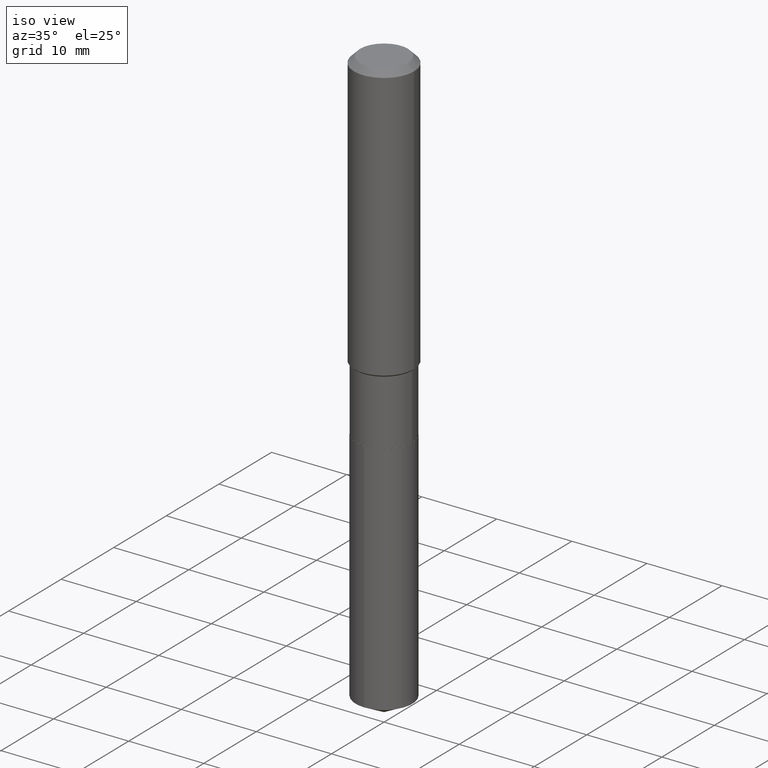
[diagram: clean part render]
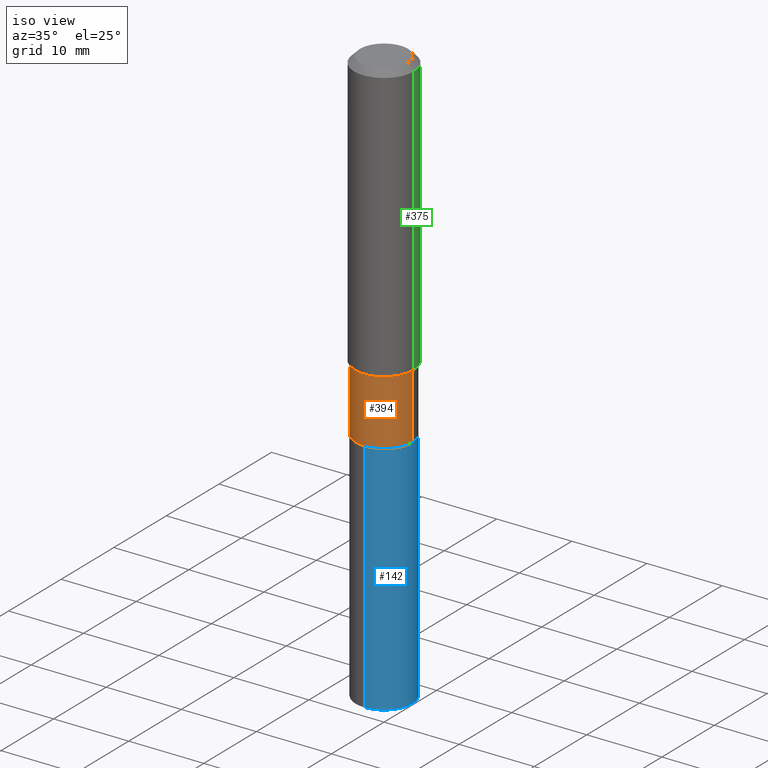
[diagram: same view with three faces highlighted in distinct colors, each labeled with its STEP entity id]
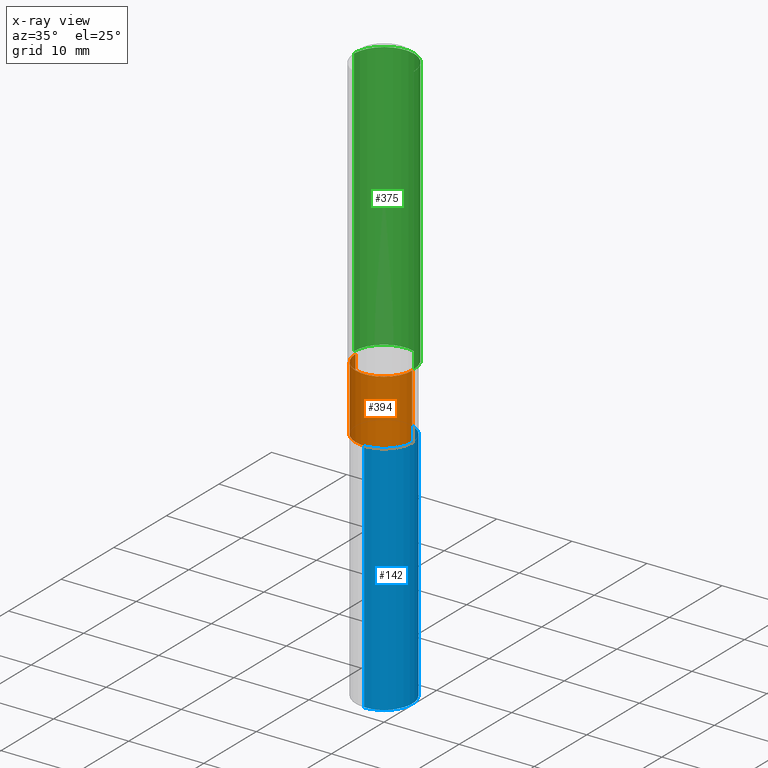
[diagram: x-ray of the same camera — body ghosted, the three highlighted faces saturated]
A machine part, iso view with three faces highlighted in distinct colors.
The next image is the same camera in x-ray (body ghosted, the three faces saturated) — at least one of them is partly hidden behind the body in this view.
Their STEP definitions:

[orange] entity #394 — the highlighted cylindrical surface (edge-blend (fillet) strip) has radius 3.7706 mm, axis along (-0, 0, 1).
#3 = AXIS2_PLACEMENT_3D ( 'NONE', #361, #168, #131 ) ;
#9 = EDGE_CURVE ( 'NONE', #54, #458, #342, .T. ) ;
#11 = DIRECTION ( 'NONE',  ( 1.000000000000000000, -6.982962677686264344E-15, 0.000000000000000000 ) ) ;
#21 = CARTESIAN_POINT ( 'NONE',  ( -0.1484499999999999986, 1.054800691235868716E-15, -7.302159141483407353E-30 ) ) ;
#42 = FACE_OUTER_BOUND ( 'NONE', #69, .T. ) ;
#44 = DIRECTION ( 'NONE',  ( -2.445468806185136597E-29, 3.491481338843145583E-15, 1.000000000000000000 ) ) ;
#50 = VERTEX_POINT ( 'NONE', #129 ) ;
#54 = VERTEX_POINT ( 'NONE', #481 ) ;
#56 = DIRECTION ( 'NONE',  ( -2.445468806185136597E-29, 3.491481338843145583E-15, 1.000000000000000000 ) ) ;
#58 = EDGE_CURVE ( 'NONE', #84, #50, #175, .T. ) ;
#61 = DIRECTION ( 'NONE',  ( -2.445468806185136877E-29, 3.491481338843145188E-15, 1.000000000000000000 ) ) ;
#64 = EDGE_CURVE ( 'NONE', #50, #458, #199, .T. ) ;
#69 = EDGE_LOOP ( 'NONE', ( #437, #93, #417, #299 ) ) ;
#84 = VERTEX_POINT ( 'NONE', #408 ) ;
#93 = ORIENTED_EDGE ( 'NONE', *, *, #58, .T. ) ;
#123 = EDGE_CURVE ( 'NONE', #84, #54, #409, .T. ) ;
#129 = CARTESIAN_POINT ( 'NONE',  ( 0.1484499999999999986, -7.294053664977210990E-15, -1.792199999999999793 ) ) ;
#131 = DIRECTION ( 'NONE',  ( 1.000000000000000000, -6.982962677686268288E-15, 0.000000000000000000 ) ) ;
#165 = CARTESIAN_POINT ( 'NONE',  ( 0.1484499999999999986, -1.036620809502526093E-15, 7.238684423669066410E-30 ) ) ;
#168 = DIRECTION ( 'NONE',  ( -2.445468806185136597E-29, 3.491481338843145583E-15, 1.000000000000000000 ) ) ;
#175 = CIRCLE ( 'NONE', #3, 0.1484499999999999986 ) ;
#176 = AXIS2_PLACEMENT_3D ( 'NONE', #330, #44, #207 ) ;
#191 = AXIS2_PLACEMENT_3D ( 'NONE', #474, #56, #11 ) ;
#199 = LINE ( 'NONE', #165, #260 ) ;
#207 = DIRECTION ( 'NONE',  ( 1.000000000000000000, -6.982962677686265133E-15, 4.876176775795935793E-29 ) ) ;
#260 = VECTOR ( 'NONE', #479, 39.37007874015748143 ) ;
#263 = CARTESIAN_POINT ( 'NONE',  ( 0.1484499999999999431, -6.103807676565582525E-15, -1.451299999999999812 ) ) ;
#299 = ORIENTED_EDGE ( 'NONE', *, *, #9, .F. ) ;
#306 = CYLINDRICAL_SURFACE ( 'NONE', #176, 0.1484499999999999986 ) ;
#330 = CARTESIAN_POINT ( 'NONE',  ( 0.000000000000000000, 0.000000000000000000, 0.000000000000000000 ) ) ;
#342 = CIRCLE ( 'NONE', #191, 0.1484499999999999431 ) ;
#361 = CARTESIAN_POINT ( 'NONE',  ( 4.382769194445001759E-29, -6.257432855474684305E-15, -1.792199999999999793 ) ) ;
#394 = ADVANCED_FACE ( 'NONE', ( #42 ), #306, .T. ) ;
#408 = CARTESIAN_POINT ( 'NONE',  ( -0.1484500000000000264, -4.607509170033001160E-15, -1.792199999999999793 ) ) ;
#409 = LINE ( 'NONE', #21, #414 ) ;
#414 = VECTOR ( 'NONE', #61, 39.37007874015748143 ) ;
#417 = ORIENTED_EDGE ( 'NONE', *, *, #64, .T. ) ;
#437 = ORIENTED_EDGE ( 'NONE', *, *, #123, .F. ) ;
#458 = VERTEX_POINT ( 'NONE', #263 ) ;
#474 = CARTESIAN_POINT ( 'NONE',  ( 3.549108878416488564E-29, -5.067186867063056629E-15, -1.451299999999999812 ) ) ;
#479 = DIRECTION ( 'NONE',  ( -2.445468806185136877E-29, 3.491481338843145188E-15, 1.000000000000000000 ) ) ;
#481 = CARTESIAN_POINT ( 'NONE',  ( -0.1484499999999999431, -4.607509170033001948E-15, -1.451299999999999812 ) ) ;

[blue] entity #142 — the highlighted cylindrical surface (edge-blend (fillet) strip) has radius 3.7706 mm, axis along (-0, 0, 1).
#14 = LINE ( 'NONE', #309, #60 ) ;
#15 = DIRECTION ( 'NONE',  ( -2.445583583356565207E-29, 3.491316971400948587E-15, 1.000000000000000000 ) ) ;
#20 = EDGE_CURVE ( 'NONE', #428, #271, #14, .T. ) ;
#33 = DIRECTION ( 'NONE',  ( -2.445583583356565207E-29, 3.491316971400948587E-15, 1.000000000000000000 ) ) ;
#39 = DIRECTION ( 'NONE',  ( -2.445583583356565487E-29, 3.491316971400948587E-15, 1.000000000000000000 ) ) ;
#60 = VECTOR ( 'NONE', #15, 39.37007874015748143 ) ;
#78 = VERTEX_POINT ( 'NONE', #477 ) ;
#95 = ORIENTED_EDGE ( 'NONE', *, *, #20, .T. ) ;
#98 = DIRECTION ( 'NONE',  ( -6.982962677686265133E-15, -1.000000000000000000, 3.680495781292372402E-15 ) ) ;
#122 = ORIENTED_EDGE ( 'NONE', *, *, #478, .F. ) ;
#124 = AXIS2_PLACEMENT_3D ( 'NONE', #316, #442, #98 ) ;
#135 = VERTEX_POINT ( 'NONE', #196 ) ;
#138 = LINE ( 'NONE', #257, #273 ) ;
#139 = ORIENTED_EDGE ( 'NONE', *, *, #451, .F. ) ;
#142 = ADVANCED_FACE ( 'NONE', ( #446 ), #161, .T. ) ;
#145 = CARTESIAN_POINT ( 'NONE',  ( 7.412523731404263380E-29, -1.058271288573057889E-14, -3.031067734869853592 ) ) ;
#161 = CYLINDRICAL_SURFACE ( 'NONE', #124, 0.1484499999999999986 ) ;
#196 = CARTESIAN_POINT ( 'NONE',  ( -1.036620809502482311E-15, -0.1484500000000062436, -1.792699999999999072 ) ) ;
#253 = CIRCLE ( 'NONE', #322, 0.1484499999999999986 ) ;
#257 = CARTESIAN_POINT ( 'NONE',  ( -1.036620809502482311E-15, -0.1484500000000062436, -1.792699999999999072 ) ) ;
#271 = VERTEX_POINT ( 'NONE', #443 ) ;
#273 = VECTOR ( 'NONE', #33, 39.37007874015748143 ) ;
#289 = ORIENTED_EDGE ( 'NONE', *, *, #349, .T. ) ;
#298 = DIRECTION ( 'NONE',  ( -6.982962677686265133E-15, -1.000000000000000000, 3.680495781292372402E-15 ) ) ;
#309 = CARTESIAN_POINT ( 'NONE',  ( 1.054800691235912301E-15, 0.1484499999999937259, -1.792700000000000182 ) ) ;
#316 = CARTESIAN_POINT ( 'NONE',  ( 4.383991928848093439E-29, -6.259178596144105809E-15, -1.792699999999999738 ) ) ;
#322 = AXIS2_PLACEMENT_3D ( 'NONE', #145, #423, #372 ) ;
#332 = CIRCLE ( 'NONE', #473, 0.1484499999999999986 ) ;
#349 = EDGE_CURVE ( 'NONE', #78, #428, #253, .T. ) ;
#372 = DIRECTION ( 'NONE',  ( -6.982962677686265133E-15, -1.000000000000000000, 3.680495781292372402E-15 ) ) ;
#418 = CARTESIAN_POINT ( 'NONE',  ( 1.054800691235942475E-15, 0.1484499999999893960, -3.031067734869854480 ) ) ;
#420 = CARTESIAN_POINT ( 'NONE',  ( 4.383991928848093439E-29, -6.259178596144105809E-15, -1.792699999999999738 ) ) ;
#423 = DIRECTION ( 'NONE',  ( -2.445583583356565487E-29, 3.491316971400948587E-15, 1.000000000000000000 ) ) ;
#428 = VERTEX_POINT ( 'NONE', #418 ) ;
#442 = DIRECTION ( 'NONE',  ( -2.445583583356565487E-29, 3.491316971400948587E-15, 1.000000000000000000 ) ) ;
#443 = CARTESIAN_POINT ( 'NONE',  ( 1.054800691235942869E-15, 0.1484499999999937259, -1.792700000000000182 ) ) ;
#446 = FACE_OUTER_BOUND ( 'NONE', #454, .T. ) ;
#451 = EDGE_CURVE ( 'NONE', #78, #135, #138, .T. ) ;
#454 = EDGE_LOOP ( 'NONE', ( #289, #95, #122, #139 ) ) ;
#473 = AXIS2_PLACEMENT_3D ( 'NONE', #420, #39, #298 ) ;
#477 = CARTESIAN_POINT ( 'NONE',  ( -1.036620809502451743E-15, -0.1484500000000105457, -3.031067734869853147 ) ) ;
#478 = EDGE_CURVE ( 'NONE', #135, #271, #332, .T. ) ;

[green] entity #375 — the highlighted cylindrical surface (partial cylindrical patch) has radius 4.0005 mm, axis along (-0, 0, 1).
#2 = CARTESIAN_POINT ( 'NONE',  ( -0.1575000000000000844, 1.119104808822158392E-15, -7.747322767151481189E-30 ) ) ;
#12 = DIRECTION ( 'NONE',  ( -2.445468806185136877E-29, 3.491481338843145188E-15, 1.000000000000000000 ) ) ;
#27 = CARTESIAN_POINT ( 'NONE',  ( 3.526977385720512669E-29, -5.035588960946525443E-15, -1.442249999999999588 ) ) ;
#29 = AXIS2_PLACEMENT_3D ( 'NONE', #407, #59, #130 ) ;
#43 = EDGE_LOOP ( 'NONE', ( #377, #350, #228, #305 ) ) ;
#48 = CARTESIAN_POINT ( 'NONE',  ( -0.1575000000000000011, -1.453680502737883861E-15, -0.03150000000000019451 ) ) ;
#51 = CARTESIAN_POINT ( 'NONE',  ( 0.1575000000000000844, -1.099816621735587677E-15, 7.679978421878603638E-30 ) ) ;
#59 = DIRECTION ( 'NONE',  ( -2.445468806185136597E-29, 3.491481338843145583E-15, 1.000000000000000000 ) ) ;
#90 = AXIS2_PLACEMENT_3D ( 'NONE', #27, #320, #482 ) ;
#91 = EDGE_CURVE ( 'NONE', #297, #385, #317, .T. ) ;
#130 = DIRECTION ( 'NONE',  ( 1.000000000000000000, -6.982962677686265922E-15, 0.000000000000000000 ) ) ;
#140 = DIRECTION ( 'NONE',  ( 1.000000000000000000, -6.982962677686267499E-15, 4.876176775795936353E-29 ) ) ;
#148 = LINE ( 'NONE', #2, #387 ) ;
#181 = FACE_OUTER_BOUND ( 'NONE', #43, .T. ) ;
#183 = EDGE_CURVE ( 'NONE', #297, #476, #391, .T. ) ;
#225 = DIRECTION ( 'NONE',  ( -2.445468806185136877E-29, 3.491481338843145188E-15, 1.000000000000000000 ) ) ;
#228 = ORIENTED_EDGE ( 'NONE', *, *, #307, .F. ) ;
#297 = VERTEX_POINT ( 'NONE', #487 ) ;
#305 = ORIENTED_EDGE ( 'NONE', *, *, #183, .F. ) ;
#307 = EDGE_CURVE ( 'NONE', #476, #486, #364, .T. ) ;
#317 = CIRCLE ( 'NONE', #90, 0.1575000000000001676 ) ;
#320 = DIRECTION ( 'NONE',  ( -2.445468806185136597E-29, 3.491481338843145583E-15, 1.000000000000000000 ) ) ;
#337 = CARTESIAN_POINT ( 'NONE',  ( 0.000000000000000000, 0.000000000000000000, 0.000000000000000000 ) ) ;
#340 = DIRECTION ( 'NONE',  ( -2.445468806185136597E-29, 3.491481338843145583E-15, 1.000000000000000000 ) ) ;
#350 = ORIENTED_EDGE ( 'NONE', *, *, #405, .T. ) ;
#363 = VECTOR ( 'NONE', #225, 39.37007874015748143 ) ;
#364 = CIRCLE ( 'NONE', #29, 0.1575000000000000011 ) ;
#371 = CARTESIAN_POINT ( 'NONE',  ( -0.1575000000000001676, -3.916484152124366261E-15, -1.442249999999999588 ) ) ;
#375 = ADVANCED_FACE ( 'NONE', ( #181 ), #461, .T. ) ;
#377 = ORIENTED_EDGE ( 'NONE', *, *, #91, .T. ) ;
#385 = VERTEX_POINT ( 'NONE', #371 ) ;
#387 = VECTOR ( 'NONE', #12, 39.37007874015748143 ) ;
#391 = LINE ( 'NONE', #51, #363 ) ;
#405 = EDGE_CURVE ( 'NONE', #385, #486, #148, .T. ) ;
#407 = CARTESIAN_POINT ( 'NONE',  ( 7.703226739483228723E-31, -1.099816621735597661E-16, -0.03150000000000019451 ) ) ;
#429 = CARTESIAN_POINT ( 'NONE',  ( 0.1575000000000000011, -1.209798283909146741E-15, -0.03150000000000019451 ) ) ;
#440 = AXIS2_PLACEMENT_3D ( 'NONE', #337, #340, #140 ) ;
#461 = CYLINDRICAL_SURFACE ( 'NONE', #440, 0.1575000000000000844 ) ;
#476 = VERTEX_POINT ( 'NONE', #429 ) ;
#482 = DIRECTION ( 'NONE',  ( 1.000000000000000000, -6.982962677686267499E-15, 0.000000000000000000 ) ) ;
#486 = VERTEX_POINT ( 'NONE', #48 ) ;
#487 = CARTESIAN_POINT ( 'NONE',  ( 0.1575000000000001676, -6.135405582682112923E-15, -1.442249999999999588 ) ) ;